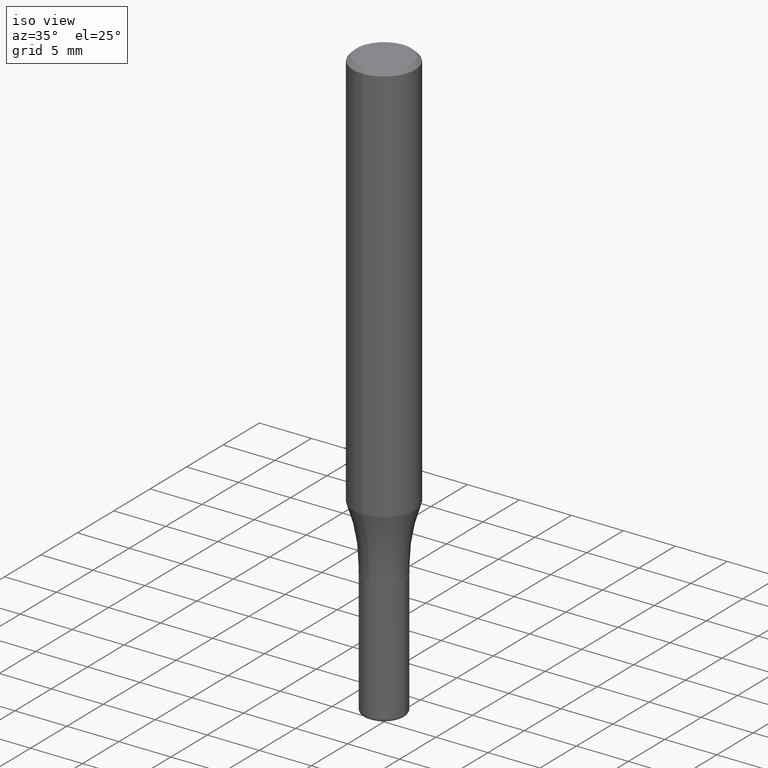
[diagram: clean part render]
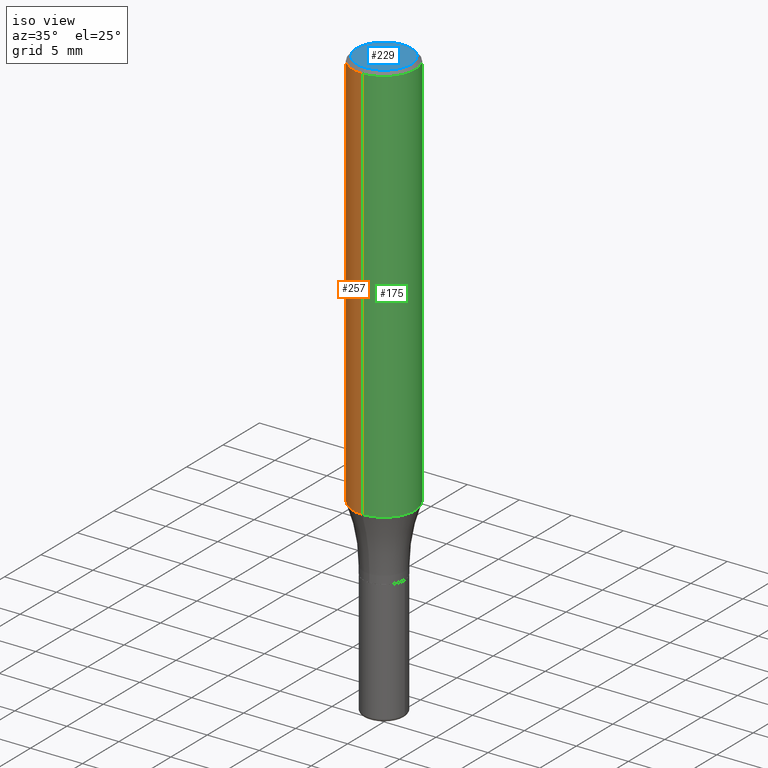
[diagram: same view with three faces highlighted in distinct colors, each labeled with its STEP entity id]
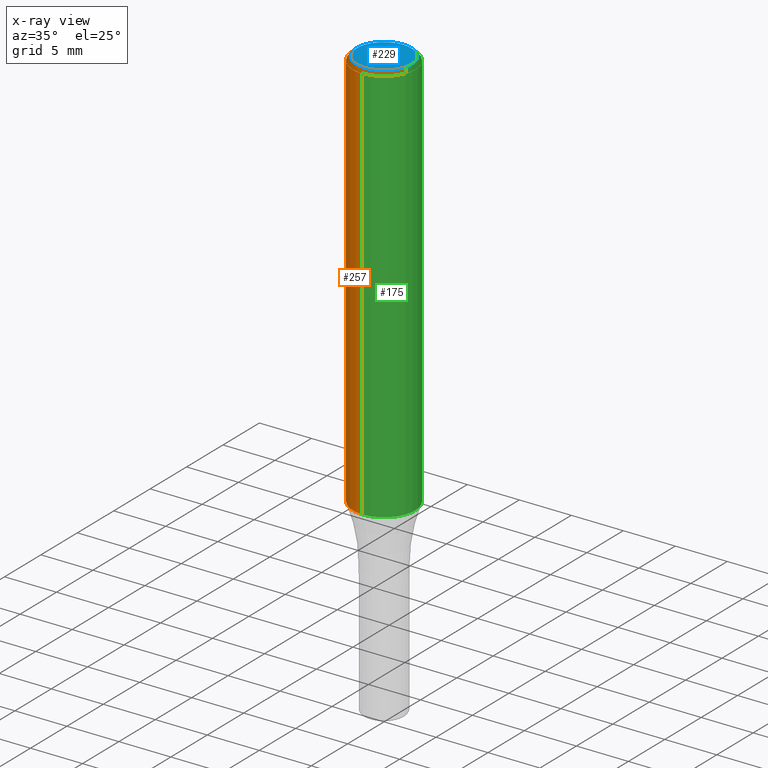
[diagram: x-ray of the same camera — body ghosted, the three highlighted faces saturated]
A machine part, iso view with three faces highlighted in distinct colors.
The next image is the same camera in x-ray (body ghosted, the three faces saturated) — at least one of them is partly hidden behind the body in this view.
Their STEP definitions:

[orange] entity #257 — the highlighted cylindrical surface (partial cylindrical patch) has radius 2.9997 mm, axis along (-0, 0, 1).
#11 = DIRECTION ( 'NONE',  ( -2.445838269977468989E-29, 3.490952245663952321E-15, 1.000000000000000000 ) ) ;
#23 = CARTESIAN_POINT ( 'NONE',  ( -8.246878922347106931E-16, -0.1181000000000053951, -1.523436220366272131 ) ) ;
#39 = DIRECTION ( 'NONE',  ( -6.982962677686265922E-15, -1.000000000000000000, 3.490952245663952321E-15 ) ) ;
#40 = CIRCLE ( 'NONE', #434, 0.1181000000000000383 ) ;
#52 = CARTESIAN_POINT ( 'NONE',  ( 8.391509709327160624E-16, 0.1180999999999946676, -1.523436220366273020 ) ) ;
#66 = ORIENTED_EDGE ( 'NONE', *, *, #115, .T. ) ;
#97 = CARTESIAN_POINT ( 'NONE',  ( 3.726078609641658463E-29, -5.318243094613442822E-15, -1.523436220366272575 ) ) ;
#98 = VERTEX_POINT ( 'NONE', #181 ) ;
#115 = EDGE_CURVE ( 'NONE', #385, #484, #40, .T. ) ;
#119 = LINE ( 'NONE', #363, #244 ) ;
#159 = DIRECTION ( 'NONE',  ( -2.445838269977468989E-29, 3.490952245663952321E-15, 1.000000000000000000 ) ) ;
#160 = VERTEX_POINT ( 'NONE', #384 ) ;
#181 = CARTESIAN_POINT ( 'NONE',  ( 8.246878922347483612E-16, 0.1180999999999999411, -0.01500000000000009659 ) ) ;
#182 = AXIS2_PLACEMENT_3D ( 'NONE', #405, #353, #39 ) ;
#197 = VECTOR ( 'NONE', #495, 39.37007874015748143 ) ;
#219 = ORIENTED_EDGE ( 'NONE', *, *, #414, .T. ) ;
#241 = EDGE_CURVE ( 'NONE', #385, #98, #119, .T. ) ;
#244 = VECTOR ( 'NONE', #518, 39.37007874015748143 ) ;
#257 = ADVANCED_FACE ( 'NONE', ( #317 ), #315, .T. ) ;
#273 = AXIS2_PLACEMENT_3D ( 'NONE', #464, #11, #411 ) ;
#296 = ORIENTED_EDGE ( 'NONE', *, *, #355, .F. ) ;
#301 = CARTESIAN_POINT ( 'NONE',  ( -8.246878922347480654E-16, -0.1181000000000000105, 4.122814602129128181E-16 ) ) ;
#315 = CYLINDRICAL_SURFACE ( 'NONE', #182, 0.1181000000000000105 ) ;
#317 = FACE_OUTER_BOUND ( 'NONE', #442, .T. ) ;
#330 = CIRCLE ( 'NONE', #273, 0.1180999999999999966 ) ;
#340 = ORIENTED_EDGE ( 'NONE', *, *, #241, .F. ) ;
#353 = DIRECTION ( 'NONE',  ( -2.445838269977468989E-29, 3.490952245663952321E-15, 1.000000000000000000 ) ) ;
#355 = EDGE_CURVE ( 'NONE', #98, #160, #330, .T. ) ;
#363 = CARTESIAN_POINT ( 'NONE',  ( 8.391509709326782957E-16, 0.1181000000000000105, -4.122814602129128181E-16 ) ) ;
#372 = DIRECTION ( 'NONE',  ( -6.982962677686265922E-15, -1.000000000000000000, 4.626330217890367758E-15 ) ) ;
#384 = CARTESIAN_POINT ( 'NONE',  ( -8.102248135368174406E-16, -0.1181000000000000522, -0.01499999999999927260 ) ) ;
#385 = VERTEX_POINT ( 'NONE', #52 ) ;
#405 = CARTESIAN_POINT ( 'NONE',  ( 0.000000000000000000, 0.000000000000000000, 0.000000000000000000 ) ) ;
#411 = DIRECTION ( 'NONE',  ( -6.982962677686265922E-15, -1.000000000000000000, 3.487819265831411744E-15 ) ) ;
#414 = EDGE_CURVE ( 'NONE', #484, #160, #455, .T. ) ;
#434 = AXIS2_PLACEMENT_3D ( 'NONE', #97, #159, #372 ) ;
#442 = EDGE_LOOP ( 'NONE', ( #340, #66, #219, #296 ) ) ;
#455 = LINE ( 'NONE', #301, #197 ) ;
#464 = CARTESIAN_POINT ( 'NONE',  ( 3.668757404966126376E-31, -5.236428368495817893E-17, -0.01499999999999968373 ) ) ;
#484 = VERTEX_POINT ( 'NONE', #23 ) ;
#495 = DIRECTION ( 'NONE',  ( -2.445838269977468989E-29, 3.490952245663951927E-15, 1.000000000000000000 ) ) ;
#518 = DIRECTION ( 'NONE',  ( -2.445838269977468989E-29, 3.490952245663951927E-15, 1.000000000000000000 ) ) ;

[blue] entity #229 — the highlighted planar face has unit normal (0, -0, -1).
#3 = CARTESIAN_POINT ( 'NONE',  ( 7.723156721521011834E-16, 0.1031000000000000111, -8.678692666830198749E-17 ) ) ;
#32 = CARTESIAN_POINT ( 'NONE',  ( -6.680324177952438221E-45, 9.534846591063069195E-31, 2.731302498596515053E-16 ) ) ;
#34 = DIRECTION ( 'NONE',  ( 2.445838269977468989E-29, -3.490952245663951927E-15, -1.000000000000000000 ) ) ;
#35 = EDGE_CURVE ( 'NONE', #172, #449, #398, .T. ) ;
#37 = FACE_OUTER_BOUND ( 'NONE', #463, .T. ) ;
#58 = ORIENTED_EDGE ( 'NONE', *, *, #185, .T. ) ;
#85 = DIRECTION ( 'NONE',  ( -6.982962677686265922E-15, -1.000000000000000000, 3.490952245663952716E-15 ) ) ;
#94 = PLANE ( 'NONE',  #466 ) ;
#116 = CIRCLE ( 'NONE', #473, 0.1031000000000000111 ) ;
#138 = DIRECTION ( 'NONE',  ( -2.445838269977468989E-29, 3.490952245663952321E-15, 1.000000000000000000 ) ) ;
#156 = DIRECTION ( 'NONE',  ( 6.982962677686265922E-15, 1.000000000000000000, -3.490952245663951927E-15 ) ) ;
#172 = VERTEX_POINT ( 'NONE', #3 ) ;
#185 = EDGE_CURVE ( 'NONE', #449, #172, #116, .T. ) ;
#229 = ADVANCED_FACE ( 'NONE', ( #37 ), #94, .F. ) ;
#245 = ORIENTED_EDGE ( 'NONE', *, *, #35, .T. ) ;
#255 = CARTESIAN_POINT ( 'NONE',  ( -7.587710785535310407E-16, -0.1031000000000000111, 6.330474263876051214E-16 ) ) ;
#274 = DIRECTION ( 'NONE',  ( -2.445838269977468989E-29, 3.490952245663952321E-15, 1.000000000000000000 ) ) ;
#398 = CIRCLE ( 'NONE', #467, 0.1031000000000000111 ) ;
#400 = CARTESIAN_POINT ( 'NONE',  ( 7.199434520694541042E-16, 0.1031000000000000111, -2.233520515981277648E-16 ) ) ;
#449 = VERTEX_POINT ( 'NONE', #255 ) ;
#462 = DIRECTION ( 'NONE',  ( -6.982962677686265922E-15, -1.000000000000000000, 3.490952245663952716E-15 ) ) ;
#463 = EDGE_LOOP ( 'NONE', ( #245, #58 ) ) ;
#466 = AXIS2_PLACEMENT_3D ( 'NONE', #400, #34, #156 ) ;
#467 = AXIS2_PLACEMENT_3D ( 'NONE', #498, #138, #462 ) ;
#473 = AXIS2_PLACEMENT_3D ( 'NONE', #32, #274, #85 ) ;
#498 = CARTESIAN_POINT ( 'NONE',  ( -6.680324177952438221E-45, 9.534846591063069195E-31, 2.731302498596515053E-16 ) ) ;

[green] entity #175 — the highlighted cylindrical surface (partial cylindrical patch) has radius 2.9997 mm, axis along (-0, 0, 1).
#6 = DIRECTION ( 'NONE',  ( -2.445838269977468989E-29, 3.490952245663952321E-15, 1.000000000000000000 ) ) ;
#23 = CARTESIAN_POINT ( 'NONE',  ( -8.246878922347106931E-16, -0.1181000000000053951, -1.523436220366272131 ) ) ;
#52 = CARTESIAN_POINT ( 'NONE',  ( 8.391509709327160624E-16, 0.1180999999999946676, -1.523436220366273020 ) ) ;
#54 = CIRCLE ( 'NONE', #292, 0.1181000000000000383 ) ;
#87 = DIRECTION ( 'NONE',  ( -6.982962677686265922E-15, -1.000000000000000000, 4.626330217890367758E-15 ) ) ;
#98 = VERTEX_POINT ( 'NONE', #181 ) ;
#104 = EDGE_CURVE ( 'NONE', #160, #98, #515, .T. ) ;
#119 = LINE ( 'NONE', #363, #244 ) ;
#126 = CARTESIAN_POINT ( 'NONE',  ( 0.000000000000000000, 0.000000000000000000, 0.000000000000000000 ) ) ;
#127 = CYLINDRICAL_SURFACE ( 'NONE', #479, 0.1181000000000000105 ) ;
#142 = EDGE_LOOP ( 'NONE', ( #220, #494, #260, #365 ) ) ;
#160 = VERTEX_POINT ( 'NONE', #384 ) ;
#175 = ADVANCED_FACE ( 'NONE', ( #367 ), #127, .T. ) ;
#181 = CARTESIAN_POINT ( 'NONE',  ( 8.246878922347483612E-16, 0.1180999999999999411, -0.01500000000000009659 ) ) ;
#197 = VECTOR ( 'NONE', #495, 39.37007874015748143 ) ;
#220 = ORIENTED_EDGE ( 'NONE', *, *, #277, .T. ) ;
#241 = EDGE_CURVE ( 'NONE', #385, #98, #119, .T. ) ;
#242 = DIRECTION ( 'NONE',  ( -2.445838269977468989E-29, 3.490952245663952321E-15, 1.000000000000000000 ) ) ;
#244 = VECTOR ( 'NONE', #518, 39.37007874015748143 ) ;
#260 = ORIENTED_EDGE ( 'NONE', *, *, #104, .F. ) ;
#268 = AXIS2_PLACEMENT_3D ( 'NONE', #366, #6, #288 ) ;
#277 = EDGE_CURVE ( 'NONE', #484, #385, #54, .T. ) ;
#288 = DIRECTION ( 'NONE',  ( -6.982962677686265922E-15, -1.000000000000000000, 3.487819265831411744E-15 ) ) ;
#292 = AXIS2_PLACEMENT_3D ( 'NONE', #443, #485, #87 ) ;
#301 = CARTESIAN_POINT ( 'NONE',  ( -8.246878922347480654E-16, -0.1181000000000000105, 4.122814602129128181E-16 ) ) ;
#363 = CARTESIAN_POINT ( 'NONE',  ( 8.391509709326782957E-16, 0.1181000000000000105, -4.122814602129128181E-16 ) ) ;
#365 = ORIENTED_EDGE ( 'NONE', *, *, #414, .F. ) ;
#366 = CARTESIAN_POINT ( 'NONE',  ( 3.668757404966126376E-31, -5.236428368495817893E-17, -0.01499999999999968373 ) ) ;
#367 = FACE_OUTER_BOUND ( 'NONE', #142, .T. ) ;
#384 = CARTESIAN_POINT ( 'NONE',  ( -8.102248135368174406E-16, -0.1181000000000000522, -0.01499999999999927260 ) ) ;
#385 = VERTEX_POINT ( 'NONE', #52 ) ;
#414 = EDGE_CURVE ( 'NONE', #484, #160, #455, .T. ) ;
#441 = DIRECTION ( 'NONE',  ( -6.982962677686265922E-15, -1.000000000000000000, 3.490952245663952321E-15 ) ) ;
#443 = CARTESIAN_POINT ( 'NONE',  ( 3.726078609641658463E-29, -5.318243094613442822E-15, -1.523436220366272575 ) ) ;
#455 = LINE ( 'NONE', #301, #197 ) ;
#479 = AXIS2_PLACEMENT_3D ( 'NONE', #126, #242, #441 ) ;
#484 = VERTEX_POINT ( 'NONE', #23 ) ;
#485 = DIRECTION ( 'NONE',  ( -2.445838269977468989E-29, 3.490952245663952321E-15, 1.000000000000000000 ) ) ;
#494 = ORIENTED_EDGE ( 'NONE', *, *, #241, .T. ) ;
#495 = DIRECTION ( 'NONE',  ( -2.445838269977468989E-29, 3.490952245663951927E-15, 1.000000000000000000 ) ) ;
#515 = CIRCLE ( 'NONE', #268, 0.1180999999999999966 ) ;
#518 = DIRECTION ( 'NONE',  ( -2.445838269977468989E-29, 3.490952245663951927E-15, 1.000000000000000000 ) ) ;